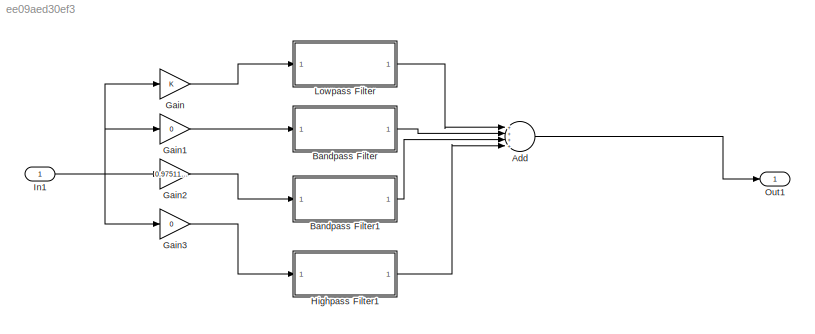
MODEL slx_ee09aed30ef3
KIND model
CONFIG AbsTol = auto
CONFIG EnableMultiTasking = off
CONFIG FixedStep = auto
CONFIG MaxStep = auto
CONFIG MinStep = auto
CONFIG RelTol = 1e-3
CONFIG SampleTimeConstraint = Unconstrained
CONFIG Solver = VariableStepAuto
CONFIG SolverName = VariableStepAuto
CONFIG StartTime = 0.0
CONFIG StopTime = 10.0
BLOCK [Sum] Add
  InputSameDT = off
  Inputs = ++++
  OutDataTypeStr = Inherit: Inherit via internal rule
  Ports = [4, 1]
  SaturateOnIntegerOverflow = off
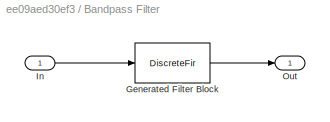
BLOCK [SubSystem] Bandpass Filter
  CopyFcn = fdesignblkfcn(gcbh, {'CopyFcn'});
  DialogController = fdesignblkfcn
  InitFcn = fdesignblkfcn(gcbh, {'InitFcn'});
  Ports = [1, 1]
  RequestExecContextInheritance = off
  UserDataPersistent = on
  Variant = off
BLOCK [DiscreteFir] Bandpass Filter/Generated Filter Block
  Coefficients = [-0.034227365537242295 0.018312757492087928 0.05932130178861178 -0.015649458947768258 0.0096465114342621835 -0.029035785159490478 -0.015761984269044724 -0.037689628472410135 -0.03202966742034466 -0.044813544994417052 -0.042077522064569023 -0.047994018438133036 -0.044347414970127598 -0.043895492779424998 -0.036914882245408523 -0.030447360988786105 -0.019612599669352172 -0.00858331876634379 0.004786...<+697ch>
  InputPortMap = u0
  InputProcessing = Columns as channels (frame based)
  OutputPortMap = o0
  Ports = [1, 1]
  Tag = BlockMethodSubSystem
BLOCK [Inport] Bandpass Filter/In
  IconDisplay = Port number
BLOCK [Outport] Bandpass Filter/Out
  IconDisplay = Port number
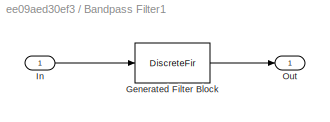
BLOCK [SubSystem] Bandpass Filter1
  CopyFcn = fdesignblkfcn(gcbh, {'CopyFcn'});
  DialogController = fdesignblkfcn
  InitFcn = fdesignblkfcn(gcbh, {'InitFcn'});
  Ports = [1, 1]
  RequestExecContextInheritance = off
  UserDataPersistent = on
  Variant = off
BLOCK [DiscreteFir] Bandpass Filter1/Generated Filter Block
  Coefficients = [-0.071193933975794793 0.042567551632574072 0.023370929263920877 0.0067492245502078505 -0.0056303528823154706 -0.012406515894683801 -0.012509643538729659 -0.0056607808720928483 0.0073925777727120202 0.024156862094491815 0.040950617859290002 0.05303589501571479 0.05614662588295434 0.047414277531303138 0.026950275664504888 -0.0021817284297539169 -0.033973814822860146 -0.06117405180846118 -0.07656021...<+699ch>
  InputPortMap = u0
  InputProcessing = Columns as channels (frame based)
  OutputPortMap = o0
  Ports = [1, 1]
  Tag = BlockMethodSubSystem
BLOCK [Inport] Bandpass Filter1/In
  IconDisplay = Port number
BLOCK [Outport] Bandpass Filter1/Out
  IconDisplay = Port number
BLOCK [Gain] Gain
  OutDataTypeStr = Inherit: Inherit via internal rule
  ParamDataTypeStr = Inherit: Inherit via internal rule
  SaturateOnIntegerOverflow = off
BLOCK [Gain] Gain1
  Gain = 0
  OutDataTypeStr = Inherit: Inherit via internal rule
  ParamDataTypeStr = Inherit: Inherit via internal rule
  SaturateOnIntegerOverflow = off
BLOCK [Gain] Gain2
  Gain = 0.9751138139661
  OutDataTypeStr = Inherit: Inherit via internal rule
  ParamDataTypeStr = Inherit: Inherit via internal rule
  SaturateOnIntegerOverflow = off
BLOCK [Gain] Gain3
  Gain = 0
  OutDataTypeStr = Inherit: Inherit via internal rule
  ParamDataTypeStr = Inherit: Inherit via internal rule
  SaturateOnIntegerOverflow = off
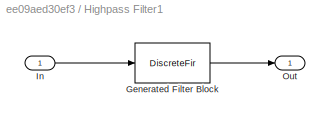
BLOCK [SubSystem] Highpass Filter1
  CopyFcn = fdesignblkfcn(gcbh, {'CopyFcn'});
  DialogController = fdesignblkfcn
  InitFcn = fdesignblkfcn(gcbh, {'InitFcn'});
  Ports = [1, 1]
  RequestExecContextInheritance = off
  UserDataPersistent = on
  Variant = off
BLOCK [DiscreteFir] Highpass Filter1/Generated Filter Block
  Coefficients = [0.018474008886137774 -0.07093427222798343 -0.026736009141952864 -0.012590249565781884 -0.0029223409381482746 0.0064166158658349477 0.01376997205732409 0.016707240639420411 0.013639039609664469 0.0049637238837780427 -0.0068574716590106451 -0.017827795097230564 -0.023758479772147303 -0.021504192552314477 -0.010454091224033886 0.0070581716995950124 0.025786675130562247 0.038995997151154212 0.0400909...<+699ch>
  InputPortMap = u0
  InputProcessing = Columns as channels (frame based)
  OutputPortMap = o0
  Ports = [1, 1]
  Tag = BlockMethodSubSystem
BLOCK [Inport] Highpass Filter1/In
  IconDisplay = Port number
BLOCK [Outport] Highpass Filter1/Out
  IconDisplay = Port number
BLOCK [Inport] In1
  IconDisplay = Port number
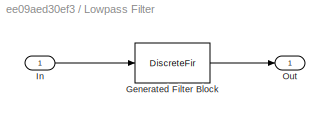
BLOCK [SubSystem] Lowpass Filter
  CopyFcn = fdesignblkfcn(gcbh, {'CopyFcn'});
  DialogController = fdesignblkfcn
  InitFcn = fdesignblkfcn(gcbh, {'InitFcn'});
  Ports = [1, 1]
  RequestExecContextInheritance = off
  UserDataPersistent = on
  Variant = off
BLOCK [DiscreteFir] Lowpass Filter/Generated Filter Block
  Coefficients = [-0.067571599194720749 0.028366275622582534 0.024365308441611347 0.021834882196456632 0.020229321096330865 0.019593102757112429 0.019467767446300618 0.01970710174125179 0.020316328767870182 0.021189381305964993 0.022233119686554535 0.023289912862881998 0.024434404835929416 0.025590101085555161 0.026793987513412713 0.027904494200213244 0.028994063526814901 0.029963415719363243 0.030889637193174065 ...<+670ch>
  InputPortMap = u0
  InputProcessing = Columns as channels (frame based)
  OutputPortMap = o0
  Ports = [1, 1]
  Tag = BlockMethodSubSystem
BLOCK [Inport] Lowpass Filter/In
  IconDisplay = Port number
BLOCK [Outport] Lowpass Filter/Out
  IconDisplay = Port number
BLOCK [Outport] Out1
  IconDisplay = Port number
LINE Add:1 -> Out1:1
LINE Bandpass Filter1:1 -> Add:3
LINE Bandpass Filter:1 -> Add:2
LINE Gain1:1 -> Bandpass Filter:1
LINE Gain2:1 -> Bandpass Filter1:1
LINE Gain3:1 -> Highpass Filter1:1
LINE Gain:1 -> Lowpass Filter:1
LINE Highpass Filter1:1 -> Add:4
NET In1:1 -> Gain1:1, Gain2:1, Gain3:1, Gain:1
LINE Lowpass Filter:1 -> Add:1
note: NET lines group one-source signal fan-out (src -> all destinations, sorted); 1:1 wires keep LINE
